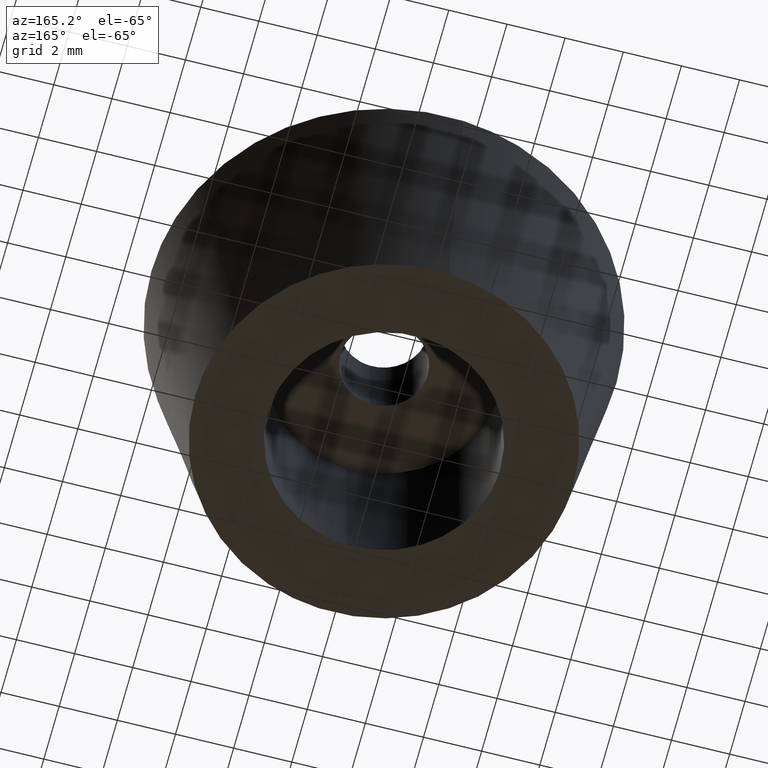
[diagram: clean part render]
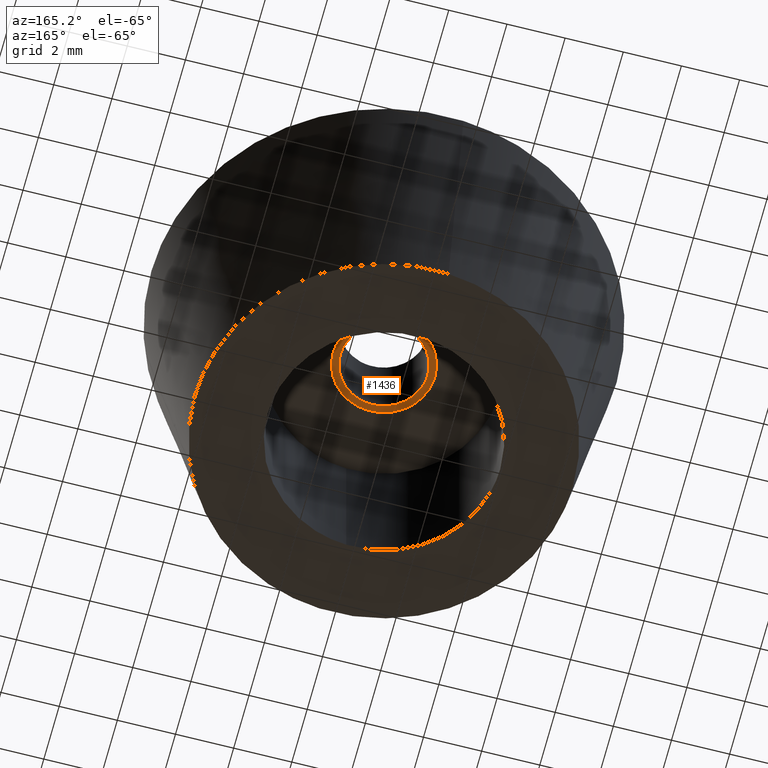
[diagram: same view with one face highlighted and labeled with its STEP entity id]
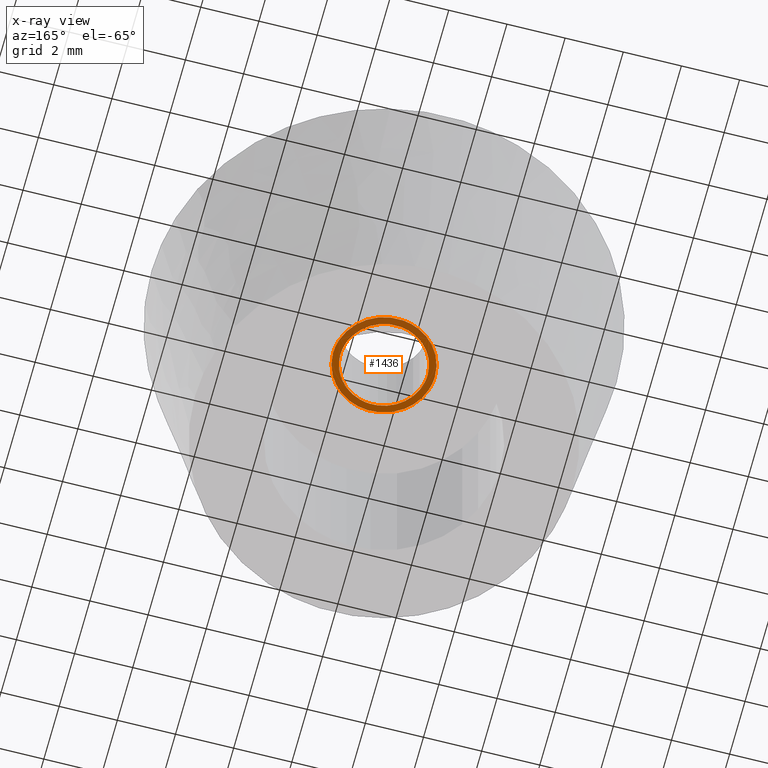
[diagram: x-ray of the same camera — body ghosted, the highlighted face saturated]
A machine part, auxiliary view. The second image highlights one B-rep face of the part: STEP entity #1436.
The next image is the same camera in x-ray: the body ghosted, the highlighted face saturated — about 29% of this face is hidden behind the body in this view.
In plain terms, the highlighted face is a freeform B-spline surface patch.
Its self-contained STEP definition (entity closure, byte-faithful):
#515=CARTESIAN_POINT('',(-0.177051351996448,1.489514289544155,6.0));
#516=VERTEX_POINT('',#515);
#517=CARTESIAN_POINT('',(1.500000000000000,0.0,6.0));
#518=VERTEX_POINT('',#517);
#519=CARTESIAN_POINT('',(-0.177051351996448,1.489514289544155,5.999999999999999));
#520=CARTESIAN_POINT('',(-0.088836179489295,1.500000000000000,5.999999999999999));
#521=CARTESIAN_POINT('',(0.0,1.500000000000000,6.0));
#522=CARTESIAN_POINT('',(1.500000000000000,1.500000000000000,6.0));
#523=CARTESIAN_POINT('',(1.500000000000000,0.0,6.0));
#531=(BOUNDED_CURVE()B_SPLINE_CURVE(2,(#519,#520,#521,#522,#523),.UNSPECIFIED.,.F.,.U.)B_SPLINE_CURVE_WITH_KNOTS((3,2,3),(0.229562473513078,0.250000000000000,0.500000000000000),.UNSPECIFIED.)CURVE()GEOMETRIC_REPRESENTATION_ITEM()RATIONAL_B_SPLINE_CURVE((0.956026754182855,0.976055948330640,1.0,0.707106781186548,1.0))REPRESENTATION_ITEM(''));
#532=EDGE_CURVE('',#516,#518,#531,.T.);
#534=CARTESIAN_POINT('',(0.091572809311081,-1.497202197632262,6.000000000000001));
#535=VERTEX_POINT('',#534);
#536=CARTESIAN_POINT('',(1.500000000000000,0.0,6.0));
#537=CARTESIAN_POINT('',(1.500000000000001,-1.411059100341942,6.000000000000001));
#538=CARTESIAN_POINT('',(0.091572809311081,-1.497202197632263,6.000000000000001));
#546=(BOUNDED_CURVE()B_SPLINE_CURVE(2,(#536,#537,#538),.UNSPECIFIED.,.F.,.U.)B_SPLINE_CURVE_WITH_KNOTS((3,3),(0.500000000000000,0.739332962239942),.UNSPECIFIED.)CURVE()GEOMETRIC_REPRESENTATION_ITEM()RATIONAL_B_SPLINE_CURVE((1.0,0.719603993285540,0.976072041668859))REPRESENTATION_ITEM(''));
#547=EDGE_CURVE('',#518,#535,#546,.T.);
#614=CARTESIAN_POINT('',(-1.500000000000000,0.0,6.0));
#615=VERTEX_POINT('',#614);
#616=CARTESIAN_POINT('',(-1.500000000000000,0.0,6.0));
#617=CARTESIAN_POINT('',(-1.500000000000000,1.332261788906676,6.000000000000002));
#618=CARTESIAN_POINT('',(-0.177051351996448,1.489514289544155,6.0));
#626=(BOUNDED_CURVE()B_SPLINE_CURVE(2,(#616,#617,#618),.UNSPECIFIED.,.F.,.U.)B_SPLINE_CURVE_WITH_KNOTS((3,3),(0.0,0.229562473513078),.UNSPECIFIED.)CURVE()GEOMETRIC_REPRESENTATION_ITEM()RATIONAL_B_SPLINE_CURVE((1.0,0.731050832855907,0.956026754182855))REPRESENTATION_ITEM(''));
#627=EDGE_CURVE('',#615,#516,#626,.T.);
#661=CARTESIAN_POINT('',(0.091572809311081,-1.497202197632263,6.000000000000001));
#662=CARTESIAN_POINT('',(0.045829144956703,-1.500000000000000,6.0));
#663=CARTESIAN_POINT('',(0.0,-1.500000000000000,6.0));
#664=CARTESIAN_POINT('',(-1.500000000000000,-1.500000000000000,6.0));
#665=CARTESIAN_POINT('',(-1.500000000000000,0.0,6.0));
#673=(BOUNDED_CURVE()B_SPLINE_CURVE(2,(#661,#662,#663,#664,#665),.UNSPECIFIED.,.F.,.U.)B_SPLINE_CURVE_WITH_KNOTS((3,2,3),(0.739332962239941,0.750000000000000,1.0),.UNSPECIFIED.)CURVE()GEOMETRIC_REPRESENTATION_ITEM()RATIONAL_B_SPLINE_CURVE((0.976072041668857,0.987502787901007,1.0,0.707106781186548,1.0))REPRESENTATION_ITEM(''));
#674=EDGE_CURVE('',#535,#615,#673,.T.);
#701=CARTESIAN_POINT('',(-0.206559910678980,1.737766671132891,5.999999999999999));
#702=VERTEX_POINT('',#701);
#703=CARTESIAN_POINT('',(1.750000000000000,0.0,6.0));
#704=VERTEX_POINT('',#703);
#705=CARTESIAN_POINT('',(-0.206559910678980,1.737766671132892,5.999999999999999));
#706=CARTESIAN_POINT('',(-0.103642209420809,1.750000000000000,6.0));
#707=CARTESIAN_POINT('',(0.0,1.750000000000000,6.0));
#708=CARTESIAN_POINT('',(1.750000000000000,1.750000000000000,6.0));
#709=CARTESIAN_POINT('',(1.750000000000000,0.0,6.0));
#717=(BOUNDED_CURVE()B_SPLINE_CURVE(2,(#705,#706,#707,#708,#709),.UNSPECIFIED.,.F.,.U.)B_SPLINE_CURVE_WITH_KNOTS((3,2,3),(0.229562473509876,0.250000000000000,0.500000000000000),.UNSPECIFIED.)CURVE()GEOMETRIC_REPRESENTATION_ITEM()RATIONAL_B_SPLINE_CURVE((0.956026754176581,0.976055948326890,1.0,0.707106781186547,1.0))REPRESENTATION_ITEM(''));
#718=EDGE_CURVE('',#702,#704,#717,.T.);
#759=CARTESIAN_POINT('',(0.106834944196258,-1.746735897237639,6.0));
#760=VERTEX_POINT('',#759);
#766=CARTESIAN_POINT('',(1.750000000000000,0.0,6.0));
#767=CARTESIAN_POINT('',(1.750000000000000,-1.646235617065599,6.0));
#768=CARTESIAN_POINT('',(0.106834944196258,-1.746735897237639,6.000000000000001));
#776=(BOUNDED_CURVE()B_SPLINE_CURVE(2,(#766,#767,#768),.UNSPECIFIED.,.F.,.U.)B_SPLINE_CURVE_WITH_KNOTS((3,3),(0.500000000000000,0.739332962239942),.UNSPECIFIED.)CURVE()GEOMETRIC_REPRESENTATION_ITEM()RATIONAL_B_SPLINE_CURVE((1.0,0.719603993285539,0.976072041668859))REPRESENTATION_ITEM(''));
#777=EDGE_CURVE('',#704,#760,#776,.T.);
#800=CARTESIAN_POINT('',(-1.750000000000000,0.0,6.0));
#801=VERTEX_POINT('',#800);
#802=CARTESIAN_POINT('',(-1.750000000000000,0.0,6.0));
#803=CARTESIAN_POINT('',(-1.750000000000000,1.554305420361475,6.0));
#804=CARTESIAN_POINT('',(-0.206559910678980,1.737766671132891,5.999999999999999));
#812=(BOUNDED_CURVE()B_SPLINE_CURVE(2,(#802,#803,#804),.UNSPECIFIED.,.F.,.U.)B_SPLINE_CURVE_WITH_KNOTS((3,3),(0.0,0.229562473509877),.UNSPECIFIED.)CURVE()GEOMETRIC_REPRESENTATION_ITEM()RATIONAL_B_SPLINE_CURVE((1.0,0.731050832859657,0.956026754176581))REPRESENTATION_ITEM(''));
#813=EDGE_CURVE('',#801,#702,#812,.T.);
#815=CARTESIAN_POINT('',(0.106834944196258,-1.746735897237639,6.000000000000001));
#816=CARTESIAN_POINT('',(0.053467335782817,-1.750000000000000,6.0));
#817=CARTESIAN_POINT('',(0.0,-1.750000000000000,6.0));
#818=CARTESIAN_POINT('',(-1.750000000000000,-1.750000000000000,6.0));
#819=CARTESIAN_POINT('',(-1.750000000000000,0.0,6.0));
#827=(BOUNDED_CURVE()B_SPLINE_CURVE(2,(#815,#816,#817,#818,#819),.UNSPECIFIED.,.F.,.U.)B_SPLINE_CURVE_WITH_KNOTS((3,2,3),(0.739332962239942,0.750000000000000,1.0),.UNSPECIFIED.)CURVE()GEOMETRIC_REPRESENTATION_ITEM()RATIONAL_B_SPLINE_CURVE((0.976072041668858,0.987502787901008,1.0,0.707106781186547,1.0))REPRESENTATION_ITEM(''));
#828=EDGE_CURVE('',#760,#801,#827,.T.);
#1419=CARTESIAN_POINT('',(-1.924824993216321,-1.924782399771803,6.0));
#1420=CARTESIAN_POINT('',(1.924825087093636,-1.924782399771803,6.0));
#1421=CARTESIAN_POINT('',(-1.924824993216321,1.924793164370649,6.0));
#1422=CARTESIAN_POINT('',(1.924825087093636,1.924793164370649,6.0));
#1423=B_SPLINE_SURFACE_WITH_KNOTS('',1,1,((#1419,#1421),(#1420,#1422)),.UNSPECIFIED.,.F.,.F.,.U.,(2,2),(2,2),(0.0,3.849650080309957),(0.0,3.849575564142452),.UNSPECIFIED.);
#1424=ORIENTED_EDGE('',*,*,#813,.T.);
#1425=ORIENTED_EDGE('',*,*,#718,.T.);
#1426=ORIENTED_EDGE('',*,*,#777,.T.);
#1427=ORIENTED_EDGE('',*,*,#828,.T.);
#1428=EDGE_LOOP('',(#1424,#1425,#1426,#1427));
#1429=FACE_OUTER_BOUND('',#1428,.T.);
#1430=ORIENTED_EDGE('',*,*,#547,.F.);
#1431=ORIENTED_EDGE('',*,*,#532,.F.);
#1432=ORIENTED_EDGE('',*,*,#627,.F.);
#1433=ORIENTED_EDGE('',*,*,#674,.F.);
#1434=EDGE_LOOP('',(#1430,#1431,#1432,#1433));
#1435=FACE_BOUND('',#1434,.T.);
#1436=ADVANCED_FACE('',(#1429,#1435),#1423,.F.);